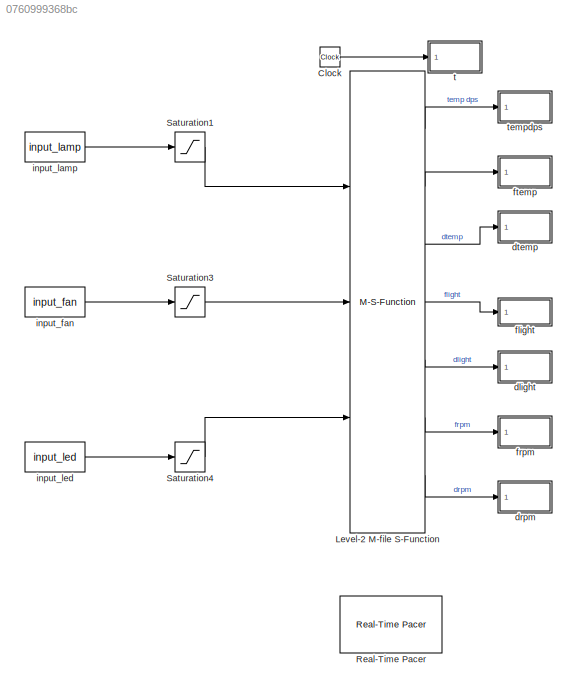
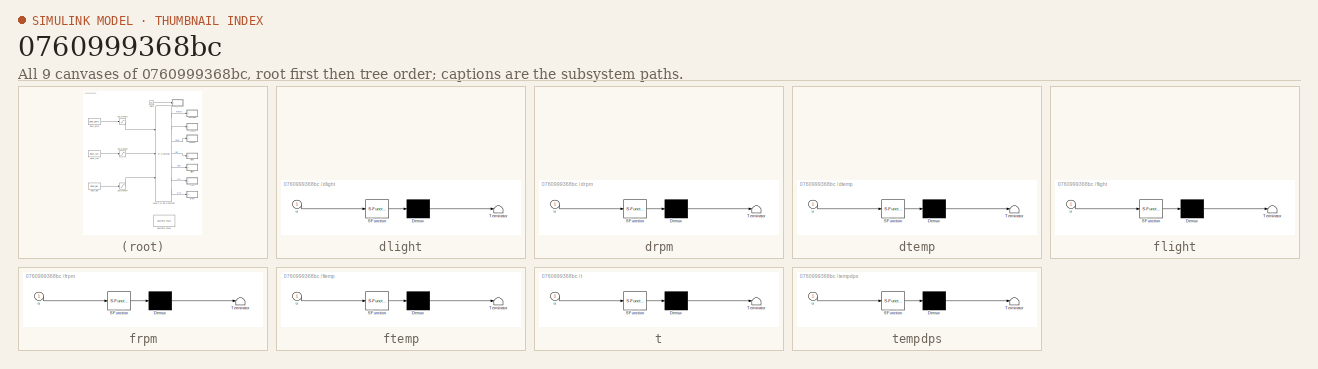
[diagram: thumbnail index - all 9 canvases of the model, root first then tree order]
MODEL slx_0760999368bc
KIND model
CONFIG AbsTol = auto
CONFIG EnableMultiTasking = off
CONFIG FixedStep = auto
CONFIG MaxStep = auto
CONFIG MinStep = auto
CONFIG RelTol = 1e-3
CONFIG SampleTimeConstraint = Unconstrained
CONFIG Solver = VariableStepAuto
CONFIG SolverName = VariableStepAuto
CONFIG StartTime = 0.0
CONFIG StopTime = 10.0
BLOCK [Clock] Clock
BLOCK [M-S-Function] Level-2 M-file S-Function
  FunctionName = tos10
  Parameters = Ts,com,baud,fTt,fTl,fTf
  Ports = [3, 7]
BLOCK [Reference] Real-Time Pacer  REF=tos_lib/Real-Time Pacer  (lib defined in mdl_b48aa653034c, slx_2f9688d23522)
  Ports = []
  SourceBlock = tos_lib/Real-Time Pacer
  SourceType = RealTime_Pacer
BLOCK [Saturate] Saturation1
  InputPortMap = u0
  LowerLimit = 0
  Ports = [1, 1]
  SampleTime = Ts
  UpperLimit = 100
BLOCK [Saturate] Saturation3
  InputPortMap = u0
  LowerLimit = 0
  Ports = [1, 1]
  SampleTime = Ts
  UpperLimit = 100
BLOCK [Saturate] Saturation4
  InputPortMap = u0
  LowerLimit = 0
  Ports = [1, 1]
  SampleTime = Ts
  UpperLimit = 100
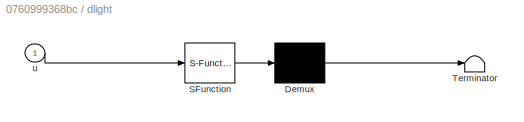
BLOCK [SubSystem] dlight
  ErrorFcn = Stateflow.Translate.translate
  PermitHierarchicalResolution = ExplicitOnly
  Ports = [1]
  RequestExecContextInheritance = off
  SFBlockType = MATLAB Function
  SystemSampleTime = Ts
  TreatAsAtomicUnit = on
BLOCK [Demux] dlight/ Demux 
  Outputs = 1
  Ports = [1, 1]
BLOCK [S-Function] dlight/ SFunction 
  EnableBusSupport = on
  FunctionName = sf_sfun
  PortCounts = [1 1]
  Ports = [1, 1]
  SFcnIsStateOwnerBlock = off
  SFunctionDeploymentMode = off
  Tag = Stateflow S-Function thermo_openloop_v2 7
BLOCK [Terminator] dlight/ Terminator 
BLOCK [Inport] dlight/u
  IconDisplay = Port number
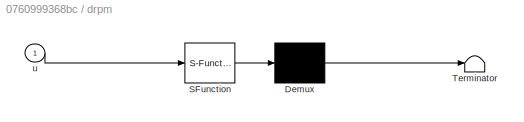
BLOCK [SubSystem] drpm
  ErrorFcn = Stateflow.Translate.translate
  PermitHierarchicalResolution = ExplicitOnly
  Ports = [1]
  RequestExecContextInheritance = off
  SFBlockType = MATLAB Function
  SystemSampleTime = Ts
  TreatAsAtomicUnit = on
BLOCK [Demux] drpm/ Demux 
  Outputs = 1
  Ports = [1, 1]
BLOCK [S-Function] drpm/ SFunction 
  EnableBusSupport = on
  FunctionName = sf_sfun
  PortCounts = [1 1]
  Ports = [1, 1]
  SFcnIsStateOwnerBlock = off
  SFunctionDeploymentMode = off
  Tag = Stateflow S-Function thermo_openloop_v2 5
BLOCK [Terminator] drpm/ Terminator 
BLOCK [Inport] drpm/u
  IconDisplay = Port number
BLOCK [SubSystem] dtemp
  ErrorFcn = Stateflow.Translate.translate
  PermitHierarchicalResolution = ExplicitOnly
  Ports = [1]
  RequestExecContextInheritance = off
  SFBlockType = MATLAB Function
  SystemSampleTime = Ts
  TreatAsAtomicUnit = on
BLOCK [Demux] dtemp/ Demux 
  Outputs = 1
  Ports = [1, 1]
BLOCK [S-Function] dtemp/ SFunction 
  EnableBusSupport = on
  FunctionName = sf_sfun
  PortCounts = [1 1]
  Ports = [1, 1]
  SFcnIsStateOwnerBlock = off
  SFunctionDeploymentMode = off
  Tag = Stateflow S-Function thermo_openloop_v2 3
BLOCK [Terminator] dtemp/ Terminator 
BLOCK [Inport] dtemp/u
  IconDisplay = Port number
BLOCK [SubSystem] flight
  ErrorFcn = Stateflow.Translate.translate
  PermitHierarchicalResolution = ExplicitOnly
  Ports = [1]
  RequestExecContextInheritance = off
  SFBlockType = MATLAB Function
  SystemSampleTime = Ts
  TreatAsAtomicUnit = on
BLOCK [Demux] flight/ Demux 
  Outputs = 1
  Ports = [1, 1]
BLOCK [S-Function] flight/ SFunction 
  EnableBusSupport = on
  FunctionName = sf_sfun
  PortCounts = [1 1]
  Ports = [1, 1]
  SFcnIsStateOwnerBlock = off
  SFunctionDeploymentMode = off
  Tag = Stateflow S-Function thermo_openloop_v2 6
BLOCK [Terminator] flight/ Terminator 
BLOCK [Inport] flight/u
  IconDisplay = Port number
BLOCK [SubSystem] frpm
  ErrorFcn = Stateflow.Translate.translate
  PermitHierarchicalResolution = ExplicitOnly
  Ports = [1]
  RequestExecContextInheritance = off
  SFBlockType = MATLAB Function
  SystemSampleTime = Ts
  TreatAsAtomicUnit = on
BLOCK [Demux] frpm/ Demux 
  Outputs = 1
  Ports = [1, 1]
BLOCK [S-Function] frpm/ SFunction 
  EnableBusSupport = on
  FunctionName = sf_sfun
  PortCounts = [1 1]
  Ports = [1, 1]
  SFcnIsStateOwnerBlock = off
  SFunctionDeploymentMode = off
  Tag = Stateflow S-Function thermo_openloop_v2 4
BLOCK [Terminator] frpm/ Terminator 
BLOCK [Inport] frpm/u
  IconDisplay = Port number
BLOCK [SubSystem] ftemp
  ErrorFcn = Stateflow.Translate.translate
  PermitHierarchicalResolution = ExplicitOnly
  Ports = [1]
  RequestExecContextInheritance = off
  SFBlockType = MATLAB Function
  SystemSampleTime = Ts
  TreatAsAtomicUnit = on
BLOCK [Demux] ftemp/ Demux 
  Outputs = 1
  Ports = [1, 1]
BLOCK [S-Function] ftemp/ SFunction 
  EnableBusSupport = on
  FunctionName = sf_sfun
  PortCounts = [1 1]
  Ports = [1, 1]
  SFcnIsStateOwnerBlock = off
  SFunctionDeploymentMode = off
  Tag = Stateflow S-Function thermo_openloop_v2 1
BLOCK [Terminator] ftemp/ Terminator 
BLOCK [Inport] ftemp/u
  IconDisplay = Port number
BLOCK [Constant] input_fan
  SampleTime = Ts
  Value = input_fan
BLOCK [Constant] input_lamp
  SampleTime = Ts
  Value = input_lamp
BLOCK [Constant] input_led
  SampleTime = Ts
  Value = input_led
BLOCK [SubSystem] t
  ErrorFcn = Stateflow.Translate.translate
  PermitHierarchicalResolution = ExplicitOnly
  Ports = [1]
  RequestExecContextInheritance = off
  SFBlockType = MATLAB Function
  SystemSampleTime = Ts
  TreatAsAtomicUnit = on
BLOCK [Demux] t/ Demux 
  Outputs = 1
  Ports = [1, 1]
BLOCK [S-Function] t/ SFunction 
  EnableBusSupport = on
  FunctionName = sf_sfun
  PortCounts = [1 1]
  Ports = [1, 1]
  SFcnIsStateOwnerBlock = off
  SFunctionDeploymentMode = off
  Tag = Stateflow S-Function thermo_openloop_v2 8
BLOCK [Terminator] t/ Terminator 
BLOCK [Inport] t/u
  IconDisplay = Port number
BLOCK [SubSystem] tempdps
  ErrorFcn = Stateflow.Translate.translate
  PermitHierarchicalResolution = ExplicitOnly
  Ports = [1]
  RequestExecContextInheritance = off
  SFBlockType = MATLAB Function
  SystemSampleTime = Ts
  TreatAsAtomicUnit = on
BLOCK [Demux] tempdps/ Demux 
  Outputs = 1
  Ports = [1, 1]
BLOCK [S-Function] tempdps/ SFunction 
  EnableBusSupport = on
  FunctionName = sf_sfun
  PortCounts = [1 1]
  Ports = [1, 1]
  SFcnIsStateOwnerBlock = off
  SFunctionDeploymentMode = off
  Tag = Stateflow S-Function thermo_openloop_v2 2
BLOCK [Terminator] tempdps/ Terminator 
BLOCK [Inport] tempdps/u
  IconDisplay = Port number
LINE Clock:1 -> t:1
LINE Level-2 M-file S-Function:1 -> tempdps:1
LINE Level-2 M-file S-Function:2 -> ftemp:1
LINE Level-2 M-file S-Function:3 -> dtemp:1
LINE Level-2 M-file S-Function:4 -> flight:1
LINE Level-2 M-file S-Function:5 -> dlight:1
LINE Level-2 M-file S-Function:6 -> frpm:1
LINE Level-2 M-file S-Function:7 -> drpm:1
LINE Saturation1:1 -> Level-2 M-file S-Function:1
LINE Saturation3:1 -> Level-2 M-file S-Function:2
LINE Saturation4:1 -> Level-2 M-file S-Function:3
LINE input_fan:1 -> Saturation3:1
LINE input_lamp:1 -> Saturation1:1
LINE input_led:1 -> Saturation4:1
CHART ftemp states=1 transitions=1
  STATE_LABEL 'eML_blk_kernel()'
  STATE_LABEL "SCRIPT:\nfunction fcn(u)\n%#eml\neml.extrinsic('num2str');\neml.extrinsic('strcat');\neml.extrinsic('evalin');\nevalin('base',strcat('ftemp(end+1)=', num2str(u),';'));\nend"
CHART tempdps states=1 transitions=1
  STATE_LABEL 'eML_blk_kernel()'
  STATE_LABEL "SCRIPT:\nfunction fcn(u)\n%#eml\neml.extrinsic('num2str');\neml.extrinsic('strcat');\neml.extrinsic('evalin');\nevalin('base',strcat('tempdps(end+1)=', num2str(u),';'));\nend"
CHART dtemp states=1 transitions=1
  STATE_LABEL 'eML_blk_kernel()'
  STATE_LABEL "SCRIPT:\nfunction fcn(u)\n%#eml\neml.extrinsic('num2str');\neml.extrinsic('strcat');\neml.extrinsic('evalin');\nevalin('base',strcat('dtemp(end+1)=', num2str(u),';'));\nend"
CHART frpm states=1 transitions=1
  STATE_LABEL 'eML_blk_kernel()'
  STATE_LABEL "SCRIPT:\nfunction fcn(u)\n%#eml\neml.extrinsic('num2str');\neml.extrinsic('strcat');\neml.extrinsic('evalin');\nevalin('base',strcat('frpm(end+1)=', num2str(u),';'));\nend"
CHART drpm states=1 transitions=1
  STATE_LABEL 'eML_blk_kernel()'
  STATE_LABEL "SCRIPT:\nfunction fcn(u)\n%#eml\neml.extrinsic('num2str');\neml.extrinsic('strcat');\neml.extrinsic('evalin');\nevalin('base',strcat('drpm(end+1)=', num2str(u),';'));\nend"
CHART flight states=1 transitions=1
  STATE_LABEL 'eML_blk_kernel()'
  STATE_LABEL "SCRIPT:\nfunction fcn(u)\n%#eml\neml.extrinsic('num2str');\neml.extrinsic('strcat');\neml.extrinsic('evalin');\nevalin('base',strcat('flight(end+1)=', num2str(u),';'));\nend"
CHART dlight states=1 transitions=1
  STATE_LABEL 'eML_blk_kernel()'
  STATE_LABEL "SCRIPT:\nfunction fcn(u)\n%#eml\neml.extrinsic('num2str');\neml.extrinsic('strcat');\neml.extrinsic('evalin');\nevalin('base',strcat('dlight(end+1)=', num2str(u),';'));\nend"
CHART t states=1 transitions=1
  STATE_LABEL 'eML_blk_kernel()'
  STATE_LABEL "SCRIPT:\nfunction fcn(u)\n%#eml\neml.extrinsic('num2str');\neml.extrinsic('strcat');\neml.extrinsic('evalin');\nevalin('base',strcat('t(end+1)=', num2str(u),';'));\nend"
